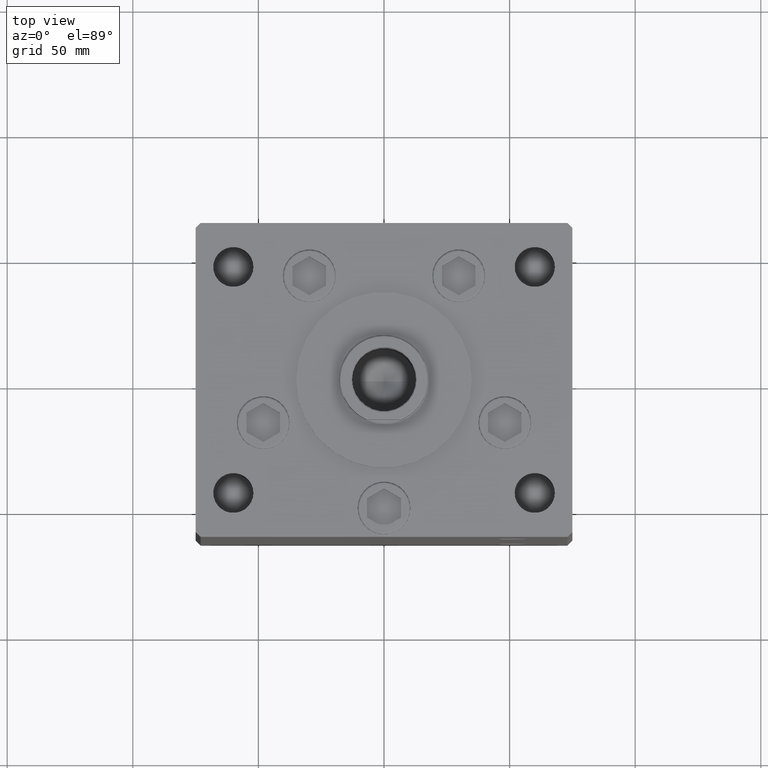
[diagram: clean part render]
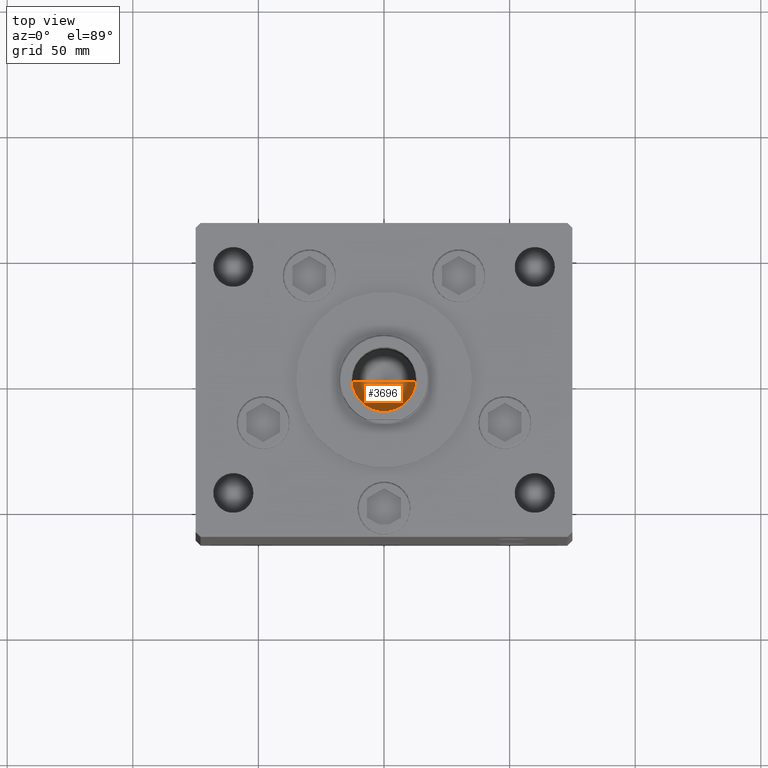
[diagram: same view with one face highlighted and labeled with its STEP entity id]
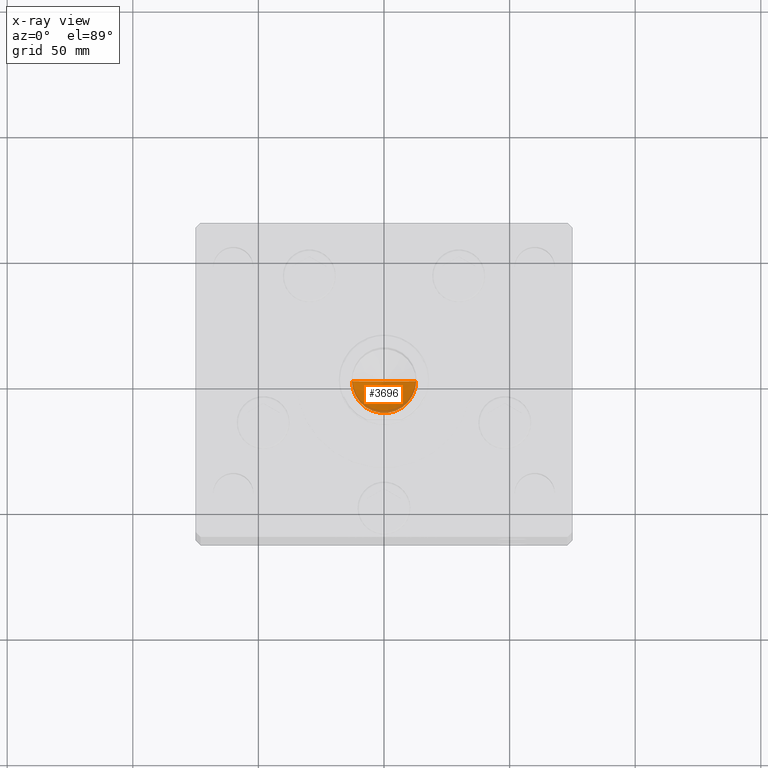
[diagram: x-ray of the same camera — body ghosted, the highlighted face saturated]
A machine part, top view. The second image highlights one B-rep face of the part: STEP entity #3696.
The next image is the same camera in x-ray: the body ghosted, the highlighted face saturated — about 8% of this face is hidden behind the body in this view.
In plain terms, the highlighted conical surface has half-angle 59 deg.
Its self-contained STEP definition (entity closure, byte-faithful):
#2902 = CARTESIAN_POINT ( 'NONE',  ( -1.307202896762960287E-14, 0.000000000000000000, 129.8390271073986355 ) ) ;
#3696 = ADVANCED_FACE ( 'NONE', ( #10768 ), #41107, .F. ) ;
#6595 = CARTESIAN_POINT ( 'NONE',  ( -12.74999999999999112, 1.561424668912874125E-15, 137.5000000000000000 ) ) ;
#7326 = ORIENTED_EDGE ( 'NONE', *, *, #47024, .F. ) ;
#8551 = EDGE_LOOP ( 'NONE', ( #7326, #14035, #36162 ) ) ;
#9651 = EDGE_CURVE ( 'NONE', #31342, #51354, #40174, .T. ) ;
#10220 = CARTESIAN_POINT ( 'NONE',  ( 12.74999999999999112, 0.000000000000000000, 137.5000000000000000 ) ) ;
#10768 = FACE_OUTER_BOUND ( 'NONE', #8551, .T. ) ;
#14035 = ORIENTED_EDGE ( 'NONE', *, *, #25349, .T. ) ;
#19178 = AXIS2_PLACEMENT_3D ( 'NONE', #34167, #50230, #46014 ) ;
#20210 = VERTEX_POINT ( 'NONE', #2902 ) ;
#21922 = CARTESIAN_POINT ( 'NONE',  ( -12.74999999999999112, 1.561424668912874125E-15, 137.5000000000000000 ) ) ;
#25349 = EDGE_CURVE ( 'NONE', #20210, #31342, #35557, .T. ) ;
#26318 = CARTESIAN_POINT ( 'NONE',  ( 0.000000000000000000, 0.000000000000000000, 137.5000000000000000 ) ) ;
#26882 = DIRECTION ( 'NONE',  ( -0.8571673007021125557, 1.049727191138618942E-16, 0.5150380749100536004 ) ) ;
#28664 = LINE ( 'NONE', #29174, #40923 ) ;
#29174 = CARTESIAN_POINT ( 'NONE',  ( 12.74999999999999112, 0.000000000000000000, 137.5000000000000000 ) ) ;
#30179 = AXIS2_PLACEMENT_3D ( 'NONE', #26318, #38700, #46069 ) ;
#31342 = VERTEX_POINT ( 'NONE', #21922 ) ;
#34167 = CARTESIAN_POINT ( 'NONE',  ( 0.000000000000000000, 0.000000000000000000, 137.5000000000000000 ) ) ;
#35477 = VECTOR ( 'NONE', #26882, 1000.000000000000114 ) ;
#35557 = LINE ( 'NONE', #6595, #35477 ) ;
#36162 = ORIENTED_EDGE ( 'NONE', *, *, #9651, .T. ) ;
#38700 = DIRECTION ( 'NONE',  ( -0.000000000000000000, -0.000000000000000000, 1.000000000000000000 ) ) ;
#40174 = CIRCLE ( 'NONE', #19178, 12.74999999999999112 ) ;
#40923 = VECTOR ( 'NONE', #41026, 1000.000000000000114 ) ;
#41026 = DIRECTION ( 'NONE',  ( 0.8571673007021125557, 0.000000000000000000, 0.5150380749100536004 ) ) ;
#41107 = CONICAL_SURFACE ( 'NONE', #30179, 12.74999999999999112, 1.029744258676655200 ) ;
#46014 = DIRECTION ( 'NONE',  ( 1.000000000000000000, 0.000000000000000000, 0.000000000000000000 ) ) ;
#46069 = DIRECTION ( 'NONE',  ( 1.000000000000000000, 0.000000000000000000, 0.000000000000000000 ) ) ;
#47024 = EDGE_CURVE ( 'NONE', #20210, #51354, #28664, .T. ) ;
#50230 = DIRECTION ( 'NONE',  ( -0.000000000000000000, -0.000000000000000000, 1.000000000000000000 ) ) ;
#51354 = VERTEX_POINT ( 'NONE', #10220 ) ;